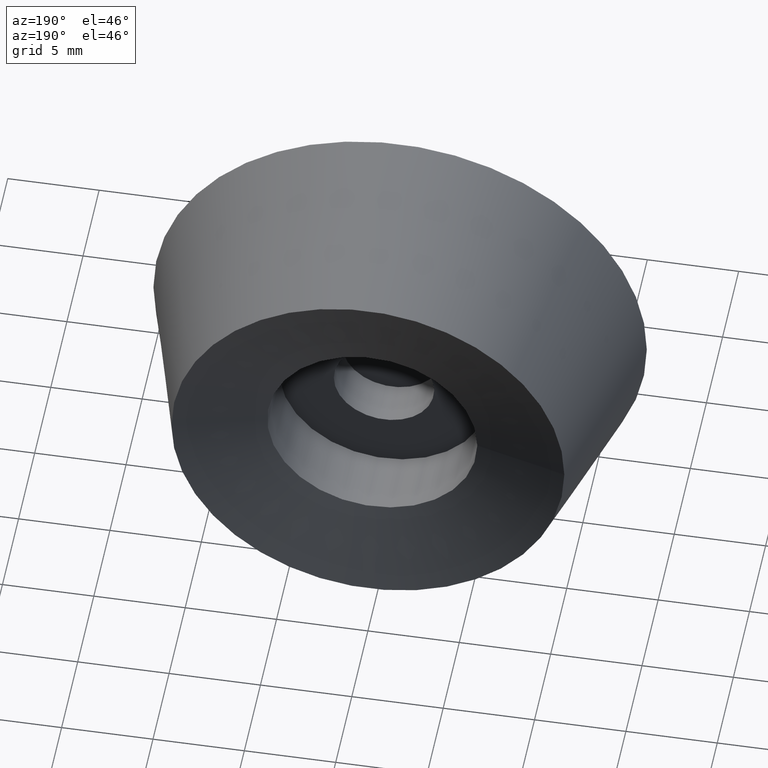
[diagram: clean part render]
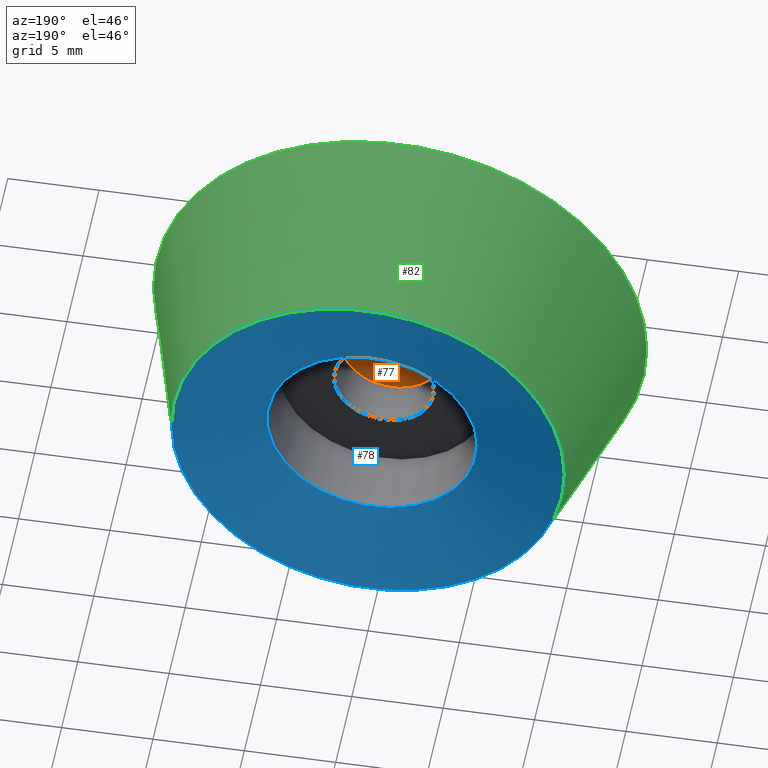
[diagram: same view with three faces highlighted in distinct colors, each labeled with its STEP entity id]
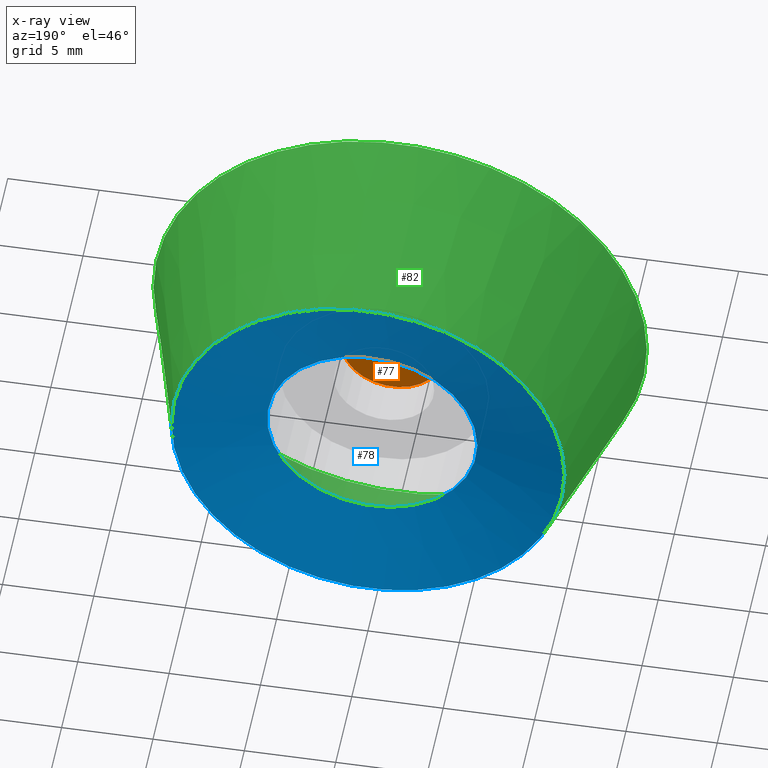
[diagram: x-ray of the same camera — body ghosted, the three highlighted faces saturated]
A machine part, auxiliary view with three faces highlighted in distinct colors.
The next image is the same camera in x-ray (body ghosted, the three faces saturated) — at least one of them is partly hidden behind the body in this view.
Their STEP definitions:

[orange] entity #77 — the highlighted planar face has unit normal (0, 1, 0).
#17=PLANE('',#88);
#26=FACE_OUTER_BOUND('',#34,.T.);
#34=EDGE_LOOP('',(#64));
#45=CIRCLE('',#87,2.75);
#51=VERTEX_POINT('',#130);
#57=EDGE_CURVE('',#51,#51,#45,.T.);
#64=ORIENTED_EDGE('',*,*,#57,.T.);
#77=ADVANCED_FACE('',(#26),#17,.T.);
#87=AXIS2_PLACEMENT_3D('',#131,#104,#105);
#88=AXIS2_PLACEMENT_3D('',#132,#106,#107);
#104=DIRECTION('center_axis',(0.,1.,0.));
#105=DIRECTION('ref_axis',(-1.,0.,0.));
#106=DIRECTION('center_axis',(0.,1.,0.));
#107=DIRECTION('ref_axis',(-1.,0.,0.));
#130=CARTESIAN_POINT('',(-2.75,2.5,0.));
#131=CARTESIAN_POINT('Origin',(0.,2.5,0.));
#132=CARTESIAN_POINT('Origin',(0.,2.5,0.));

[blue] entity #78 — the highlighted conical surface has half-angle 75 deg.
#15=CONICAL_SURFACE('',#89,8.25,75.);
#21=FACE_BOUND('',#36,.T.);
#27=FACE_OUTER_BOUND('',#35,.T.);
#35=EDGE_LOOP('',(#65));
#36=EDGE_LOOP('',(#66));
#46=CIRCLE('',#90,10.75);
#47=CIRCLE('',#91,5.75);
#52=VERTEX_POINT('',#134);
#53=VERTEX_POINT('',#136);
#58=EDGE_CURVE('',#52,#52,#46,.T.);
#59=EDGE_CURVE('',#53,#53,#47,.T.);
#65=ORIENTED_EDGE('',*,*,#58,.F.);
#66=ORIENTED_EDGE('',*,*,#59,.F.);
#78=ADVANCED_FACE('',(#27,#21),#15,.F.);
#89=AXIS2_PLACEMENT_3D('',#133,#108,#109);
#90=AXIS2_PLACEMENT_3D('',#135,#110,#111);
#91=AXIS2_PLACEMENT_3D('',#137,#112,#113);
#108=DIRECTION('center_axis',(0.,1.,0.));
#109=DIRECTION('ref_axis',(-1.,0.,0.));
#110=DIRECTION('center_axis',(0.,-1.,0.));
#111=DIRECTION('ref_axis',(1.,0.,0.));
#112=DIRECTION('center_axis',(0.,1.,0.));
#113=DIRECTION('ref_axis',(-1.,0.,0.));
#133=CARTESIAN_POINT('Origin',(0.,9.33012701892219,0.));
#134=CARTESIAN_POINT('',(-10.75,10.,0.));
#135=CARTESIAN_POINT('Origin',(0.,10.,0.));
#136=CARTESIAN_POINT('',(-5.75,8.66025403784439,0.));
#137=CARTESIAN_POINT('Origin',(0.,8.66025403784439,0.));

[green] entity #82 — the highlighted conical surface has half-angle 15.376 deg.
#16=CONICAL_SURFACE('',#97,13.5,15.3762512488262);
#24=FACE_BOUND('',#43,.T.);
#31=FACE_OUTER_BOUND('',#42,.T.);
#42=EDGE_LOOP('',(#72));
#43=EDGE_LOOP('',(#73));
#46=CIRCLE('',#90,10.75);
#49=CIRCLE('',#96,13.5);
#52=VERTEX_POINT('',#134);
#55=VERTEX_POINT('',#143);
#58=EDGE_CURVE('',#52,#52,#46,.T.);
#61=EDGE_CURVE('',#55,#55,#49,.T.);
#72=ORIENTED_EDGE('',*,*,#61,.T.);
#73=ORIENTED_EDGE('',*,*,#58,.T.);
#82=ADVANCED_FACE('',(#31,#24),#16,.T.);
#90=AXIS2_PLACEMENT_3D('',#135,#110,#111);
#96=AXIS2_PLACEMENT_3D('',#144,#122,#123);
#97=AXIS2_PLACEMENT_3D('',#145,#124,#125);
#110=DIRECTION('center_axis',(0.,-1.,0.));
#111=DIRECTION('ref_axis',(1.,0.,0.));
#122=DIRECTION('center_axis',(0.,1.,0.));
#123=DIRECTION('ref_axis',(1.,0.,0.));
#124=DIRECTION('center_axis',(0.,-1.,0.));
#125=DIRECTION('ref_axis',(1.,0.,0.));
#134=CARTESIAN_POINT('',(-10.75,10.,0.));
#135=CARTESIAN_POINT('Origin',(0.,10.,0.));
#143=CARTESIAN_POINT('',(13.5,0.,0.));
#144=CARTESIAN_POINT('Origin',(0.,0.,0.));
#145=CARTESIAN_POINT('Origin',(0.,0.,0.));